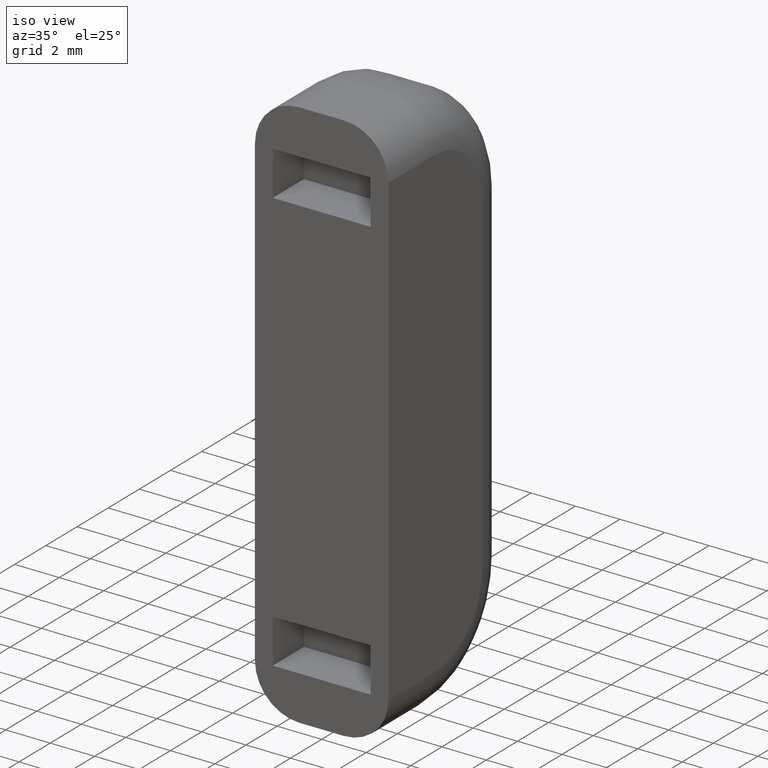
[diagram: clean part render]
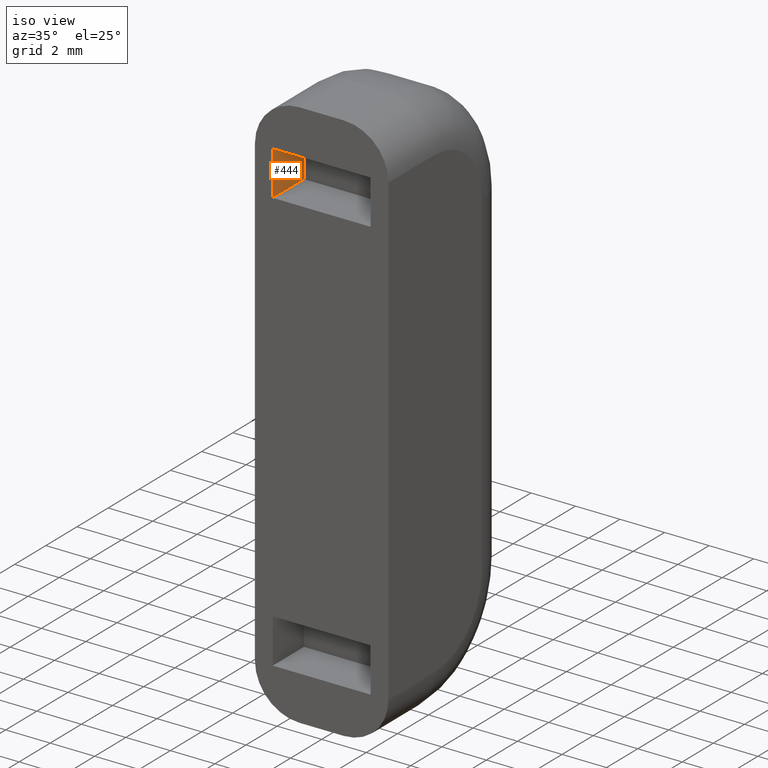
[diagram: same view with one face highlighted and labeled with its STEP entity id]
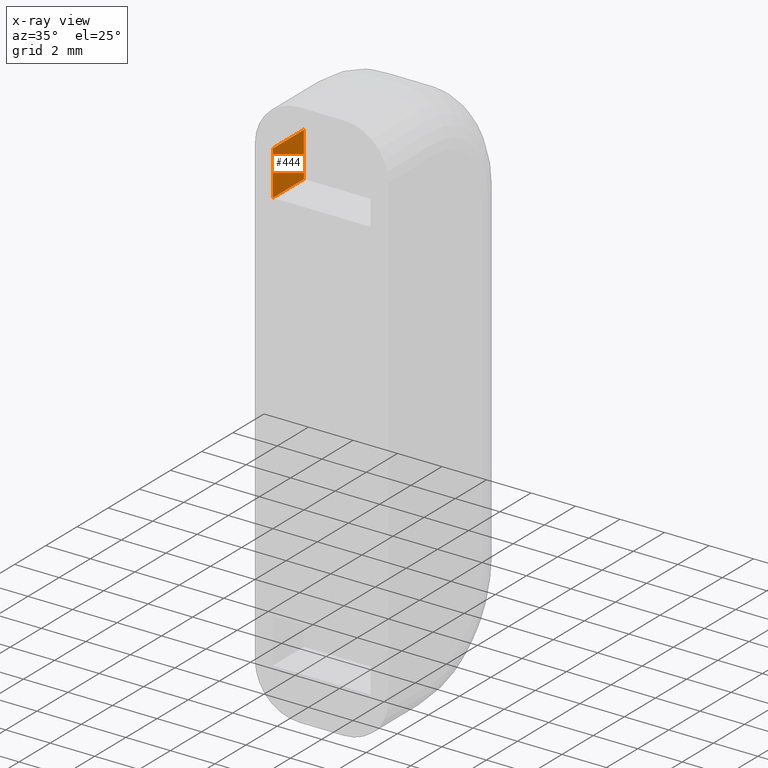
[diagram: x-ray of the same camera — body ghosted, the highlighted face saturated]
A machine part, iso view. The second image highlights one B-rep face of the part: STEP entity #444.
The next image is the same camera in x-ray: the body ghosted, the highlighted face saturated — about 0% of this face is hidden behind the body in this view.
In plain terms, the highlighted planar face has unit normal (-1, -0, 0).
Its self-contained STEP definition (entity closure, byte-faithful):
#50=FACE_OUTER_BOUND('',#78,.T.);
#78=EDGE_LOOP('',(#303,#304,#305,#306));
#111=LINE('',#697,#155);
#112=LINE('',#699,#156);
#113=LINE('',#701,#157);
#114=LINE('',#702,#158);
#155=VECTOR('',#552,10.);
#156=VECTOR('',#553,10.);
#157=VECTOR('',#554,10.);
#158=VECTOR('',#555,10.);
#199=VERTEX_POINT('',#695);
#200=VERTEX_POINT('',#696);
#201=VERTEX_POINT('',#698);
#202=VERTEX_POINT('',#700);
#239=EDGE_CURVE('',#199,#200,#111,.T.);
#240=EDGE_CURVE('',#201,#199,#112,.T.);
#241=EDGE_CURVE('',#202,#201,#113,.T.);
#242=EDGE_CURVE('',#200,#202,#114,.T.);
#303=ORIENTED_EDGE('',*,*,#239,.F.);
#304=ORIENTED_EDGE('',*,*,#240,.F.);
#305=ORIENTED_EDGE('',*,*,#241,.F.);
#306=ORIENTED_EDGE('',*,*,#242,.F.);
#428=PLANE('',#495);
#444=ADVANCED_FACE('',(#50),#428,.F.);
#495=AXIS2_PLACEMENT_3D('',#694,#550,#551);
#550=DIRECTION('center_axis',(-1.,-6.93889390390723E-16,0.));
#551=DIRECTION('ref_axis',(0.,0.,1.));
#552=DIRECTION('',(-6.93889390390723E-16,1.,-9.7144514654701E-16));
#553=DIRECTION('',(4.31408307542741E-32,-7.40148683083438E-17,1.));
#554=DIRECTION('',(6.93889390390723E-16,-1.,6.38378239159465E-15));
#555=DIRECTION('',(0.,0.,-1.));
#694=CARTESIAN_POINT('Origin',(-2.2,1.,-3.00000000000001));
#695=CARTESIAN_POINT('',(-2.2,5.55111512312578E-16,-2.));
#696=CARTESIAN_POINT('',(-2.2,2.,-2.));
#697=CARTESIAN_POINT('',(-2.2,0.5,-2.));
#698=CARTESIAN_POINT('',(-2.2,5.55111512312578E-16,-4.));
#699=CARTESIAN_POINT('',(-2.2,2.77555756156289E-16,-2.));
#700=CARTESIAN_POINT('',(-2.2,2.,-4.00000000000001));
#701=CARTESIAN_POINT('',(-2.2,1.5,-4.00000000000001));
#702=CARTESIAN_POINT('',(-2.2,2.,-2.5));